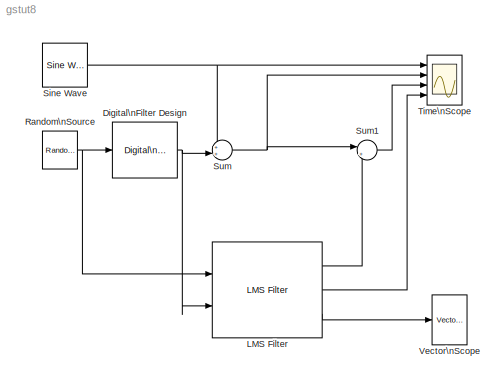
MODEL gstut8
KIND model
BLOCK [Reference] Digital\nFilter Design  REF=dsparch4/Digital\nFilter Design
  Ports = [1, 1]
  ShowPortLabels = on
  SourceBlock = dsparch4/Digital\nFilter Design
  UserData = DataTag0
  UserDataPersistent = on
BLOCK [Reference] LMS Filter  REF=dspadpt3/LMS Filter
  Adapt = off
  Algo = Normalized LMS
  DialogController = dspDDGCreate
  DialogControllerArgs = DataTag1
  L = 32
  Ports = [2, 3]
  ShowPortLabels = off
  SourceBlock = dspadpt3/LMS Filter
  SourceType = LMS Filter
  accum2FracLength = 20
  accum2Mode = User-defined
  accumFracLength = 20
  accumMode = Same as first input
  accumWordLength = 32
  addnparflag = off
  firstCoeffFracLength = 15
  firstCoeffMode = Same word length as first input
  firstCoeffWordLength = 16
  ic = 0
  leakage = 1.0
  memoryFracLength = 15
  memoryMode = Same as first input
  memoryWordLength = 16
  mu = 0.1
  overflowMode = off
  prodOutput2FracLength = 20
  prodOutput2Mode = User-defined
  prodOutput3FracLength = 20
  prodOutput3Mode = User-defined
  prodOutput4FracLength = 20
  prodOutput4Mode = User-defined
  prodOutputFracLength = 20
  prodOutputMode = Same as first input
  prodOutputWordLength = 32
  quotientFracLength = 20
  quotientMode = User-defined
  resetflag = None
  roundingMode = Floor
  secondCoeffFracLength = 15
  secondCoeffMode = User-defined
  secondCoeffWordLength = 2
  stepflag = Dialog
  weights = on
BLOCK [Reference] Random\nSource  REF=dspsrcs4/Random\nSource
  CltLength = 12
  DataType = Double
  Diagnostics = AllowInheritedTsInSrc
  Inherit = off
  Max = 1
  Mean = 0
  Min = 0
  NormMethod = Ziggurat
  OutComplex = Real
  Ports = [0, 1]
  RepMode = Specify seed
  SampFrame = 1
  SampMode = Discrete
  SampTime = 0.05
  SourceBlock = dspsrcs4/Random\nSource
  SourceType = Random Source
  SrcType = Gaussian
  UserData = DataTag2
  UserDataPersistent = on
  Var = 1
  rawSeed = [23341]
BLOCK [Reference] Sine Wave  REF=dspsrcs4/Sine Wave
  Amplitude = 1
  CompMethod = Trigonometric fcn
  Frequency = 0.5
  OutComplex = Real
  Phase = 0
  Ports = [0, 1]
  ResetState = Restart at time zero
  SampleMode = Discrete
  SampleTime = 0.05
  SamplesPerFrame = 1
  SourceBlock = dspsrcs4/Sine Wave
  SourceType = Sine Wave
  TableSize = Speed
  additionalParams = off
  allowOverrides = on
  dataType = double
  fracBitsMode = Best precision
  numFracBits = 15
  udDataType = sfix(16)
  wordLen = 16
BLOCK [Sum] Sum
  IconShape = round
  InputSameDT = off
  Inputs = ++|
  OutDataTypeMode = Inherit via internal rule
  Ports = [2, 1]
  SaturateOnIntegerOverflow = off
BLOCK [Sum] Sum1
  IconShape = round
  InputSameDT = off
  Inputs = |+-
  OutDataTypeMode = Inherit via internal rule
  Ports = [2, 1]
  SaturateOnIntegerOverflow = off
BLOCK [Scope] Time\nScope
  DataFormat = Structure
  NumInputPorts = 4
  Ports = [4]
  YMax = 5~5~5~5
  YMin = -5~-5~-5~-5
BLOCK [Reference] Vector\nScope  REF=dspsnks4/Vector\nScope
  AxisGrid = on
  AxisLegend = off
  AxisProperties = off
  AxisZoom = on
  DisplayProperties = off
  Domain = Time
  FigPos = get(0,'defaultfigureposition')
  FrameNumber = on
  HorizSpan = 1
  InheritXIncr = on
  LineColors = [0 0 1]
  LineDisables = on
  LineMarkers = .
  LineProperties = off
  LineStyles = :
  Memory = off
  OpenScopeAtSimStart = on
  OpenScopeImmediately = off
  Ports = [1]
  ScopeProperties = on
  ShowPortLabels = off
  SourceBlock = dspsnks4/Vector\nScope
  SourceType = Vector Scope
  XIncr = 1
  XLabel = Time
  XRange = [0...Fs/2]
  XUnits = Hertz
  YLabel = Filter Weights
  YMax = 0.6
  YMin = -0.2
  YUnits = dB
NET Digital\nFilter Design:1 -> LMS Filter:2, Sum:2
LINE LMS Filter:1 -> Sum1:2
LINE LMS Filter:2 -> Time\nScope:4
LINE LMS Filter:3 -> Vector\nScope:1
NET Random\nSource:1 -> Digital\nFilter Design:1, LMS Filter:1
NET Sine Wave:1 -> Sum:1, Time\nScope:1
LINE Sum1:1 -> Time\nScope:3
NET Sum:1 -> Sum1:1, Time\nScope:2
note: NET lines group one-source signal fan-out (src -> all destinations, sorted); 1:1 wires keep LINE
